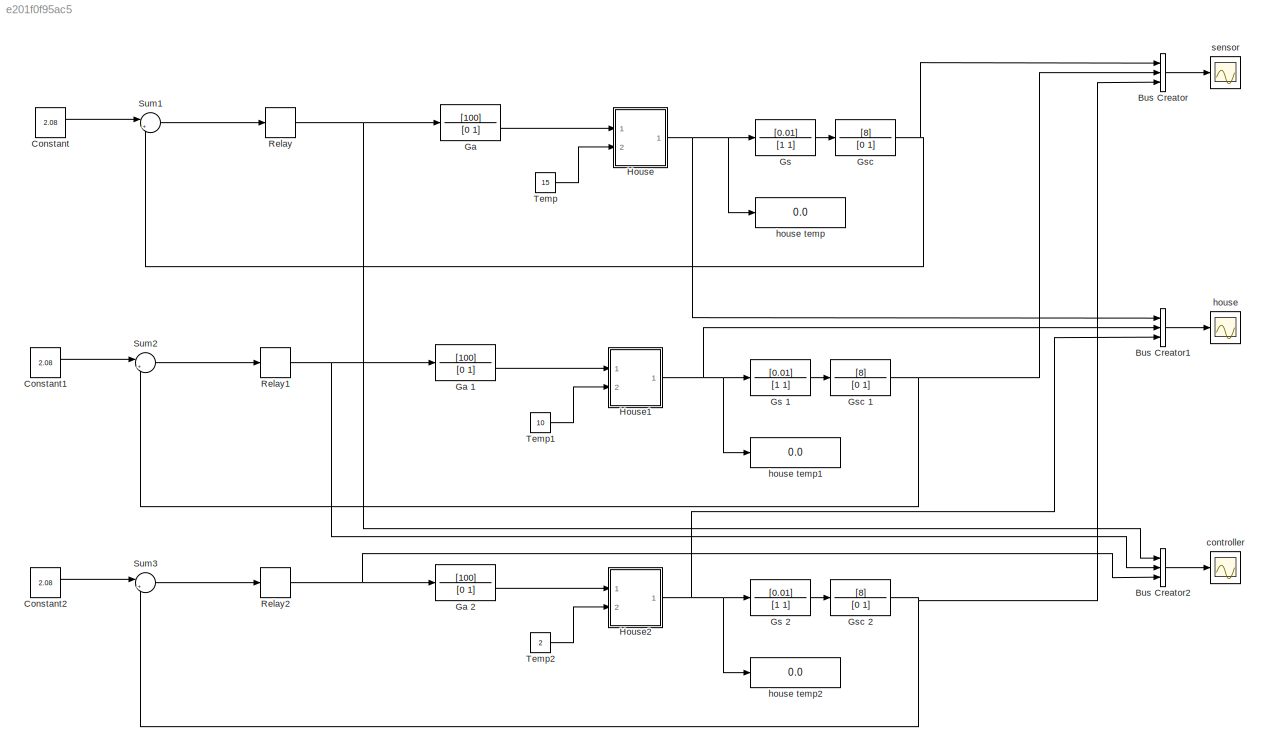
MODEL slx_e201f0f95ac5
KIND model
CONFIG AbsTol = auto
CONFIG EnableMultiTasking = off
CONFIG FixedStep = auto
CONFIG MaxStep = auto
CONFIG MinStep = auto
CONFIG RelTol = 1e-3
CONFIG SampleTimeConstraint = Unconstrained
CONFIG Solver = VariableStepAuto
CONFIG SolverName = VariableStepAuto
CONFIG StartTime = 0.0
CONFIG StopTime = 40
BLOCK [BusCreator] Bus Creator
  DisplayOption = bar
  InheritFromInputs = on
  Inputs = 3
  Ports = [3, 1]
BLOCK [BusCreator] Bus Creator1
  DisplayOption = bar
  InheritFromInputs = on
  Inputs = 3
  Ports = [3, 1]
BLOCK [BusCreator] Bus Creator2
  DisplayOption = bar
  InheritFromInputs = on
  Inputs = 3
  Ports = [3, 1]
BLOCK [Constant] Constant
  Value = 2.08
BLOCK [Constant] Constant1
  Value = 2.08
BLOCK [Constant] Constant2
  Value = 2.08
BLOCK [TransferFcn] Ga 
  Denominator = [0 1]
  Numerator = [100]
BLOCK [TransferFcn] Ga 1
  Denominator = [0 1]
  Numerator = [100]
BLOCK [TransferFcn] Ga 2
  Denominator = [0 1]
  Numerator = [100]
BLOCK [TransferFcn] Gs 
  Denominator = [1 1]
  Numerator = [0.01]
BLOCK [TransferFcn] Gs 1
  Denominator = [1 1]
  Numerator = [0.01]
BLOCK [TransferFcn] Gs 2
  Denominator = [1 1]
  Numerator = [0.01]
BLOCK [TransferFcn] Gsc 
  Denominator = [0 1]
  Numerator = [8]
BLOCK [TransferFcn] Gsc 1
  Denominator = [0 1]
  Numerator = [8]
BLOCK [TransferFcn] Gsc 2
  Denominator = [0 1]
  Numerator = [8]
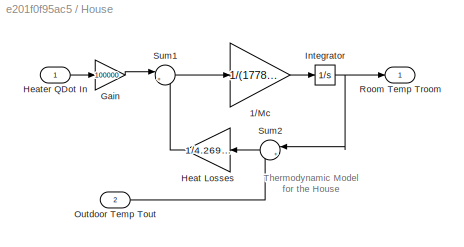
BLOCK [SubSystem] House
  Ports = [2, 1]
  RequestExecContextInheritance = off
  Variant = off
BLOCK [Gain] House/1//Mc
  Gain = 1/(1778.369114457651*1005.4)
BLOCK [Gain] House/Gain
  Gain = 100000
  OutDataTypeStr = Inherit: Inherit via internal rule
  ParamDataTypeStr = Inherit: Inherit via internal rule
  SaturateOnIntegerOverflow = off
BLOCK [Gain] House/Heat Losses
  Gain = 1/4.269756377514351e-07
BLOCK [Inport] House/Heater QDot In
  IconDisplay = Port number
BLOCK [Integrator] House/Integrator
  InitialCondition = 20
  Ports = [1, 1]
BLOCK [Inport] House/Outdoor Temp Tout
  IconDisplay = Port number
  Port = 2
BLOCK [Outport] House/Room Temp Troom
  IconDisplay = Port number
  InitialOutput = 0
BLOCK [Sum] House/Sum1
  IconShape = round
  Inputs = |+-
  Ports = [2, 1]
BLOCK [Sum] House/Sum2
  IconShape = round
  Inputs = |+-
  Ports = [2, 1]
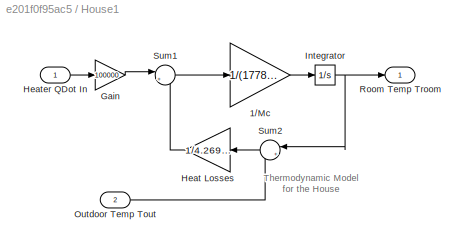
BLOCK [SubSystem] House1
  Ports = [2, 1]
  RequestExecContextInheritance = off
  Variant = off
BLOCK [Gain] House1/1//Mc
  Gain = 1/(1778.369114457651*1005.4)
BLOCK [Gain] House1/Gain
  Gain = 100000
  OutDataTypeStr = Inherit: Inherit via internal rule
  ParamDataTypeStr = Inherit: Inherit via internal rule
  SaturateOnIntegerOverflow = off
BLOCK [Gain] House1/Heat Losses
  Gain = 1/4.269756377514351e-07
BLOCK [Inport] House1/Heater QDot In
  IconDisplay = Port number
BLOCK [Integrator] House1/Integrator
  InitialCondition = 20
  Ports = [1, 1]
BLOCK [Inport] House1/Outdoor Temp Tout
  IconDisplay = Port number
  Port = 2
BLOCK [Outport] House1/Room Temp Troom
  IconDisplay = Port number
  InitialOutput = 0
BLOCK [Sum] House1/Sum1
  IconShape = round
  Inputs = |+-
  Ports = [2, 1]
BLOCK [Sum] House1/Sum2
  IconShape = round
  Inputs = |+-
  Ports = [2, 1]
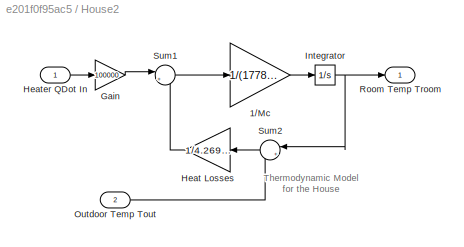
BLOCK [SubSystem] House2
  Ports = [2, 1]
  RequestExecContextInheritance = off
  Variant = off
BLOCK [Gain] House2/1//Mc
  Gain = 1/(1778.369114457651*1005.4)
BLOCK [Gain] House2/Gain
  Gain = 100000
  OutDataTypeStr = Inherit: Inherit via internal rule
  ParamDataTypeStr = Inherit: Inherit via internal rule
  SaturateOnIntegerOverflow = off
BLOCK [Gain] House2/Heat Losses
  Gain = 1/4.269756377514351e-07
BLOCK [Inport] House2/Heater QDot In
  IconDisplay = Port number
BLOCK [Integrator] House2/Integrator
  InitialCondition = 20
  Ports = [1, 1]
BLOCK [Inport] House2/Outdoor Temp Tout
  IconDisplay = Port number
  Port = 2
BLOCK [Outport] House2/Room Temp Troom
  IconDisplay = Port number
  InitialOutput = 0
BLOCK [Sum] House2/Sum1
  IconShape = round
  Inputs = |+-
  Ports = [2, 1]
BLOCK [Sum] House2/Sum2
  IconShape = round
  Inputs = |+-
  Ports = [2, 1]
BLOCK [Relay] Relay
  InputProcessing = Elements as channels (sample based)
  OffSwitchValue = -0.001
  OnOutputValue = 10
  OnSwitchValue = 0.0003
BLOCK [Relay] Relay1
  InputProcessing = Elements as channels (sample based)
  OffSwitchValue = -0.001
  OnOutputValue = 10
  OnSwitchValue = 0.0003
BLOCK [Relay] Relay2
  InputProcessing = Elements as channels (sample based)
  OffSwitchValue = -0.001
  OnOutputValue = 10
  OnSwitchValue = 0.0003
BLOCK [Sum] Sum1
  IconShape = round
  InputSameDT = off
  Inputs = |+-
  OutDataTypeStr = Inherit: Inherit via internal rule
  Ports = [2, 1]
  SaturateOnIntegerOverflow = off
BLOCK [Sum] Sum2
  IconShape = round
  InputSameDT = off
  Inputs = |+-
  OutDataTypeStr = Inherit: Inherit via internal rule
  Ports = [2, 1]
  SaturateOnIntegerOverflow = off
BLOCK [Sum] Sum3
  IconShape = round
  InputSameDT = off
  Inputs = |+-
  OutDataTypeStr = Inherit: Inherit via internal rule
  Ports = [2, 1]
  SaturateOnIntegerOverflow = off
BLOCK [Constant] Temp
  Value = 15
BLOCK [Constant] Temp1
  Value = 10
BLOCK [Constant] Temp2
  Value = 2
BLOCK [Scope] controller
  NumInputPorts = 1
  Ports = [1]
  ScopeSpecificationString = Simulink.scopes.TimeScopeBlockCfg('CurrentConfiguration', extmgr.ConfigurationSet(extmgr.Configuration('Core','General UI',true),extmgr.Configuration('Core','Source UI',true),extmgr.Configuration('Sources','WiredSimulink',true,'DataLoggingVariableName','ScopeData7'),extmgr.Configuration('Visuals','Time Domain',true,'SerializedDisplays',{struct('MinYLimReal','-1.25','MaxYLimReal','11.25','YLabelRea...<+1424ch>
BLOCK [Scope] house
  NumInputPorts = 1
  Ports = [1]
  ScopeSpecificationString = Simulink.scopes.TimeScopeBlockCfg('CurrentConfiguration', extmgr.ConfigurationSet(extmgr.Configuration('Core','General UI',true),extmgr.Configuration('Core','Source UI',true),extmgr.Configuration('Sources','WiredSimulink',true,'DataLoggingVariableName','ScopeData3'),extmgr.Configuration('Visuals','Time Domain',true,'SerializedDisplays',{struct('MinYLimReal','13.65242','MaxYLimReal','52.20647','YLa...<+1444ch>
BLOCK [Display] house temp
  Decimation = 1
  Ports = [1]
BLOCK [Display] house temp1
  Decimation = 1
  Ports = [1]
BLOCK [Display] house temp2
  Decimation = 1
  Ports = [1]
BLOCK [Scope] sensor 
  NumInputPorts = 1
  Ports = [1]
  ScopeSpecificationString = Simulink.scopes.TimeScopeBlockCfg('CurrentConfiguration', extmgr.ConfigurationSet(extmgr.Configuration('Core','General UI',true),extmgr.Configuration('Core','Source UI',true),extmgr.Configuration('Sources','WiredSimulink',true),extmgr.Configuration('Visuals','Time Domain',true,'SerializedDisplays',{struct('MinYLimReal','-0.31066','MaxYLimReal','2.79595','YLabelReal','','MinYLimMag','0.00000','MaxY...<+1396ch>
ANNOTATION House: Thermodynamic Model for the House
ANNOTATION House1: Thermodynamic Model for the House
ANNOTATION House2: Thermodynamic Model for the House
LINE Bus Creator1:1 -> house:1
LINE Bus Creator2:1 -> controller:1
LINE Bus Creator:1 -> sensor :1
LINE Constant1:1 -> Sum2:1
LINE Constant2:1 -> Sum3:1
LINE Constant:1 -> Sum1:1
LINE Ga 1:1 -> House1:1
LINE Ga 2:1 -> House2:1
LINE Ga :1 -> House:1
LINE Gs 1:1 -> Gsc 1:1
LINE Gs 2:1 -> Gsc 2:1
LINE Gs :1 -> Gsc :1
NET Gsc 1:1 -> Bus Creator:2, Sum2:2
NET Gsc 2:1 -> Bus Creator:3, Sum3:2
NET Gsc :1 -> Bus Creator:1, Sum1:2
LINE House/1//Mc:1 -> House/Integrator:1
LINE House/Gain:1 -> House/Sum1:1
LINE House/Heat Losses:1 -> House/Sum1:2
LINE House/Heater QDot In:1 -> House/Gain:1
NET House/Integrator:1 -> House/Room Temp Troom:1, House/Sum2:1
LINE House/Outdoor Temp Tout:1 -> House/Sum2:2
LINE House/Sum1:1 -> House/1//Mc:1
LINE House/Sum2:1 -> House/Heat Losses:1
LINE House1/1//Mc:1 -> House1/Integrator:1
LINE House1/Gain:1 -> House1/Sum1:1
LINE House1/Heat Losses:1 -> House1/Sum1:2
LINE House1/Heater QDot In:1 -> House1/Gain:1
NET House1/Integrator:1 -> House1/Room Temp Troom:1, House1/Sum2:1
LINE House1/Outdoor Temp Tout:1 -> House1/Sum2:2
LINE House1/Sum1:1 -> House1/1//Mc:1
LINE House1/Sum2:1 -> House1/Heat Losses:1
NET House1:1 -> Bus Creator1:2, Gs 1:1, house temp1:1
LINE House2/1//Mc:1 -> House2/Integrator:1
LINE House2/Gain:1 -> House2/Sum1:1
LINE House2/Heat Losses:1 -> House2/Sum1:2
LINE House2/Heater QDot In:1 -> House2/Gain:1
NET House2/Integrator:1 -> House2/Room Temp Troom:1, House2/Sum2:1
LINE House2/Outdoor Temp Tout:1 -> House2/Sum2:2
LINE House2/Sum1:1 -> House2/1//Mc:1
LINE House2/Sum2:1 -> House2/Heat Losses:1
NET House2:1 -> Bus Creator1:3, Gs 2:1, house temp2:1
NET House:1 -> Bus Creator1:1, Gs :1, house temp:1
NET Relay1:1 -> Bus Creator2:2, Ga 1:1
NET Relay2:1 -> Bus Creator2:3, Ga 2:1
NET Relay:1 -> Bus Creator2:1, Ga :1
LINE Sum1:1 -> Relay:1
LINE Sum2:1 -> Relay1:1
LINE Sum3:1 -> Relay2:1
LINE Temp1:1 -> House1:2
LINE Temp2:1 -> House2:2
LINE Temp:1 -> House:2
note: NET lines group one-source signal fan-out (src -> all destinations, sorted); 1:1 wires keep LINE
